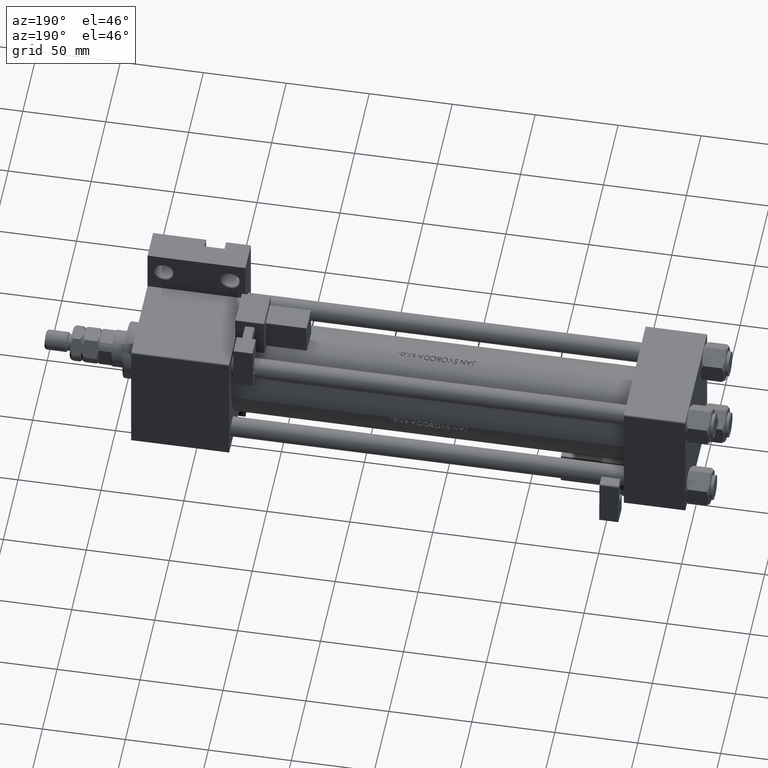
[diagram: clean part render]
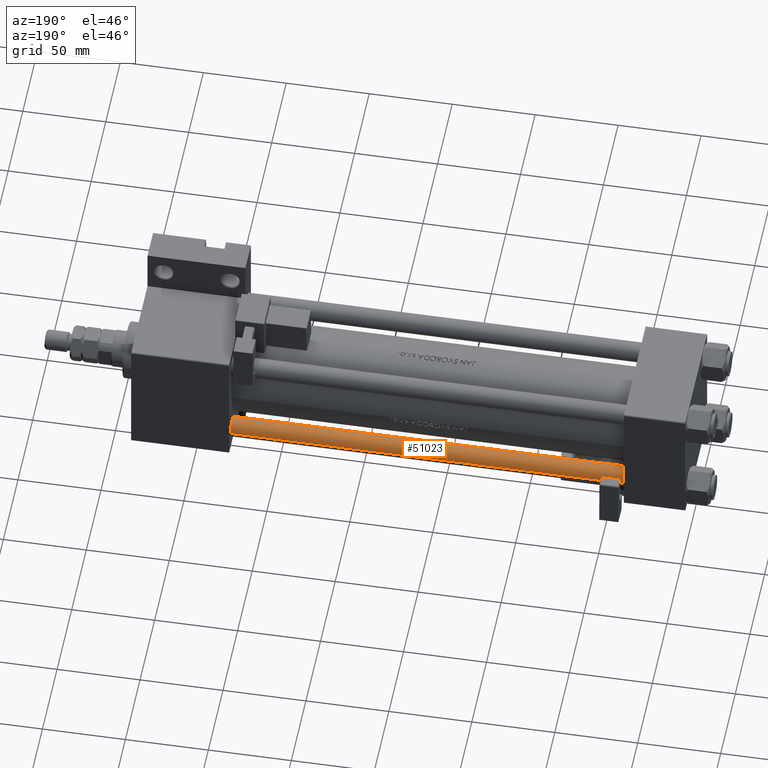
[diagram: same view with one face highlighted and labeled with its STEP entity id]
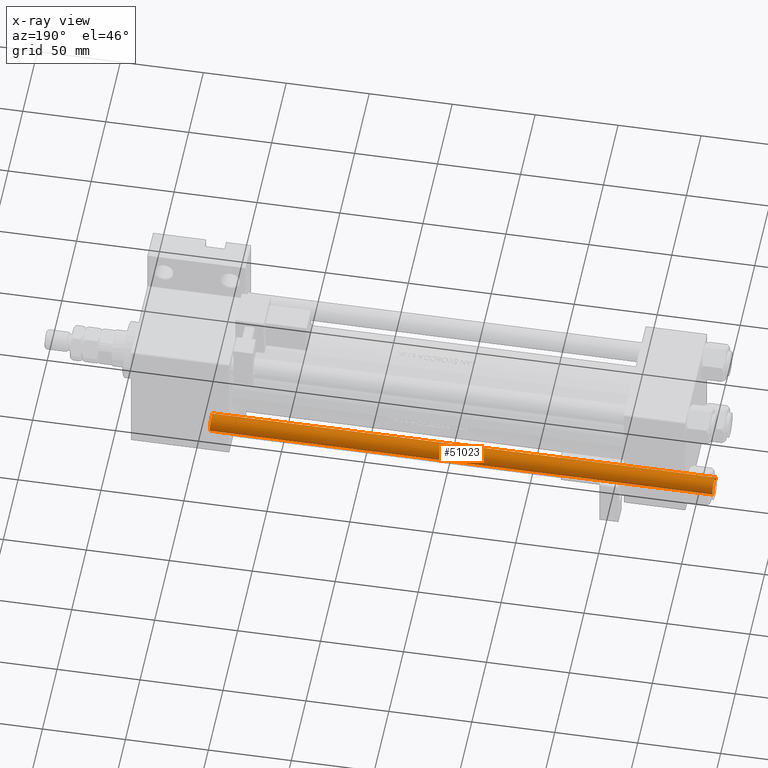
[diagram: x-ray of the same camera — body ghosted, the highlighted face saturated]
A machine part, auxiliary view. The second image highlights one B-rep face of the part: STEP entity #51023.
The next image is the same camera in x-ray: the body ghosted, the highlighted face saturated — about 0% of this face is hidden behind the body in this view.
In plain terms, the highlighted cylindrical surface (edge-blend (fillet) strip) has radius 6 mm, axis along (-1, -0, 0).
Its self-contained STEP definition (entity closure, byte-faithful):
#893 = AXIS2_PLACEMENT_3D ( 'NONE', #51047, #6380, #6636 ) ;
#2653 = VECTOR ( 'NONE', #49913, 1000.000000000000000 ) ;
#3455 = EDGE_CURVE ( 'NONE', #38522, #49988, #38649, .T. ) ;
#4296 = EDGE_CURVE ( 'NONE', #39826, #19098, #36225, .T. ) ;
#6380 = DIRECTION ( 'NONE',  ( -0.000000000000000000, -0.000000000000000000, -1.000000000000000000 ) ) ;
#6636 = DIRECTION ( 'NONE',  ( -1.000000000000000000, 0.000000000000000000, 0.000000000000000000 ) ) ;
#6871 = ORIENTED_EDGE ( 'NONE', *, *, #3455, .T. ) ;
#7267 = DIRECTION ( 'NONE',  ( 1.000000000000000000, 0.000000000000000000, 0.000000000000000000 ) ) ;
#9192 = ORIENTED_EDGE ( 'NONE', *, *, #35374, .T. ) ;
#11035 = CYLINDRICAL_SURFACE ( 'NONE', #893, 6.000000000000000888 ) ;
#16221 = CARTESIAN_POINT ( 'NONE',  ( 0.000000000000000000, 0.000000000000000000, 0.4999999999999449329 ) ) ;
#19098 = VERTEX_POINT ( 'NONE', #37339 ) ;
#19606 = CARTESIAN_POINT ( 'NONE',  ( -6.000000000000000888, 0.000000000000000000, 303.5000000000000000 ) ) ;
#20641 = DIRECTION ( 'NONE',  ( 1.000000000000000000, 0.000000000000000000, 0.000000000000000000 ) ) ;
#21245 = AXIS2_PLACEMENT_3D ( 'NONE', #51431, #31686, #7267 ) ;
#21372 = EDGE_CURVE ( 'NONE', #38522, #19098, #38013, .T. ) ;
#21675 = ORIENTED_EDGE ( 'NONE', *, *, #4296, .T. ) ;
#24341 = CARTESIAN_POINT ( 'NONE',  ( 6.000000000000000888, 7.347880794884120722E-16, 303.5000000000000000 ) ) ;
#25504 = LINE ( 'NONE', #33548, #2653 ) ;
#26387 = CARTESIAN_POINT ( 'NONE',  ( 6.000000000000000888, 7.347880794884120722E-16, 0.4999999999999449329 ) ) ;
#27069 = DIRECTION ( 'NONE',  ( -0.000000000000000000, -0.000000000000000000, -1.000000000000000000 ) ) ;
#28790 = VECTOR ( 'NONE', #27069, 1000.000000000000000 ) ;
#30796 = FACE_OUTER_BOUND ( 'NONE', #37484, .T. ) ;
#31686 = DIRECTION ( 'NONE',  ( 0.000000000000000000, 0.000000000000000000, -1.000000000000000000 ) ) ;
#33548 = CARTESIAN_POINT ( 'NONE',  ( 6.000000000000000888, 7.347880794884120722E-16, 304.0000000000000000 ) ) ;
#35374 = EDGE_CURVE ( 'NONE', #49988, #39826, #25504, .T. ) ;
#36225 = CIRCLE ( 'NONE', #48682, 6.000000000000000888 ) ;
#37339 = CARTESIAN_POINT ( 'NONE',  ( -6.000000000000000888, 0.000000000000000000, 0.4999999999999449329 ) ) ;
#37484 = EDGE_LOOP ( 'NONE', ( #6871, #9192, #21675, #49191 ) ) ;
#38013 = LINE ( 'NONE', #49960, #28790 ) ;
#38522 = VERTEX_POINT ( 'NONE', #19606 ) ;
#38649 = CIRCLE ( 'NONE', #21245, 6.000000000000000888 ) ;
#39826 = VERTEX_POINT ( 'NONE', #26387 ) ;
#43763 = DIRECTION ( 'NONE',  ( -0.000000000000000000, -0.000000000000000000, 1.000000000000000000 ) ) ;
#48682 = AXIS2_PLACEMENT_3D ( 'NONE', #16221, #43763, #20641 ) ;
#49191 = ORIENTED_EDGE ( 'NONE', *, *, #21372, .F. ) ;
#49913 = DIRECTION ( 'NONE',  ( -0.000000000000000000, -0.000000000000000000, -1.000000000000000000 ) ) ;
#49960 = CARTESIAN_POINT ( 'NONE',  ( -6.000000000000000888, 0.000000000000000000, 304.0000000000000000 ) ) ;
#49988 = VERTEX_POINT ( 'NONE', #24341 ) ;
#51023 = ADVANCED_FACE ( 'NONE', ( #30796 ), #11035, .T. ) ;
#51047 = CARTESIAN_POINT ( 'NONE',  ( 0.000000000000000000, 0.000000000000000000, 304.0000000000000000 ) ) ;
#51431 = CARTESIAN_POINT ( 'NONE',  ( 0.000000000000000000, 0.000000000000000000, 303.5000000000000000 ) ) ;